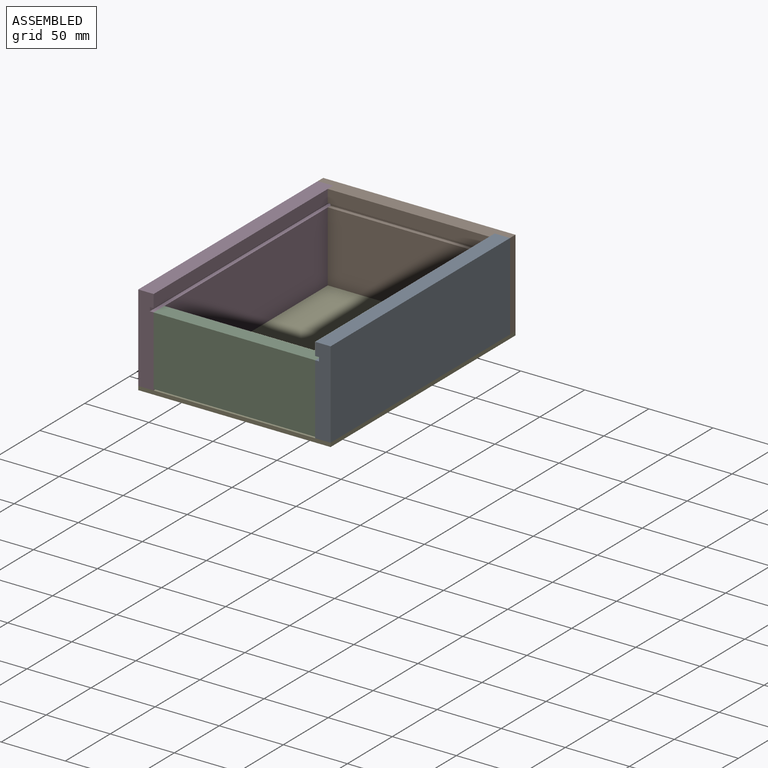
[diagram: assembled view]
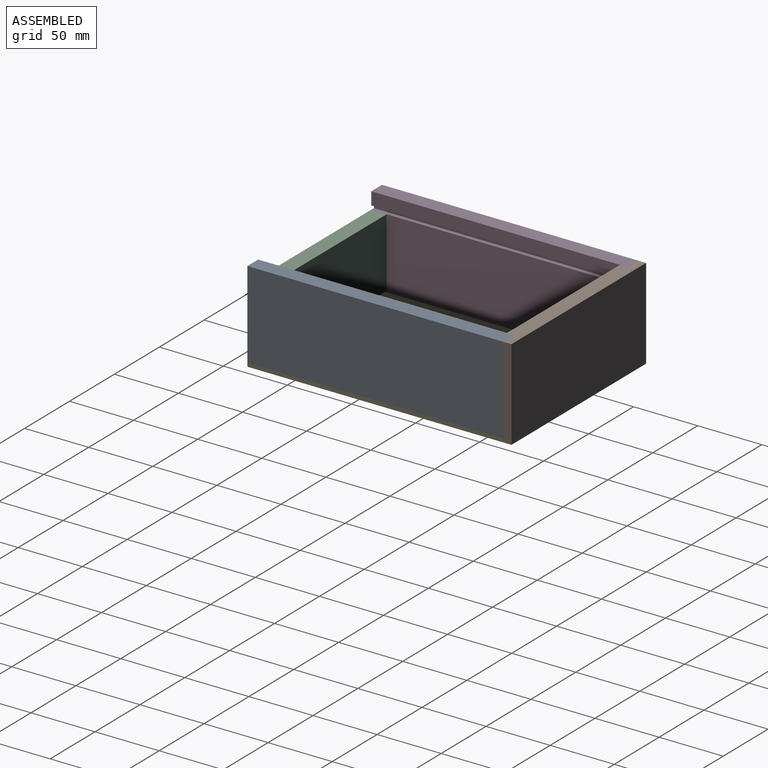
[diagram: assembled view, second angle]
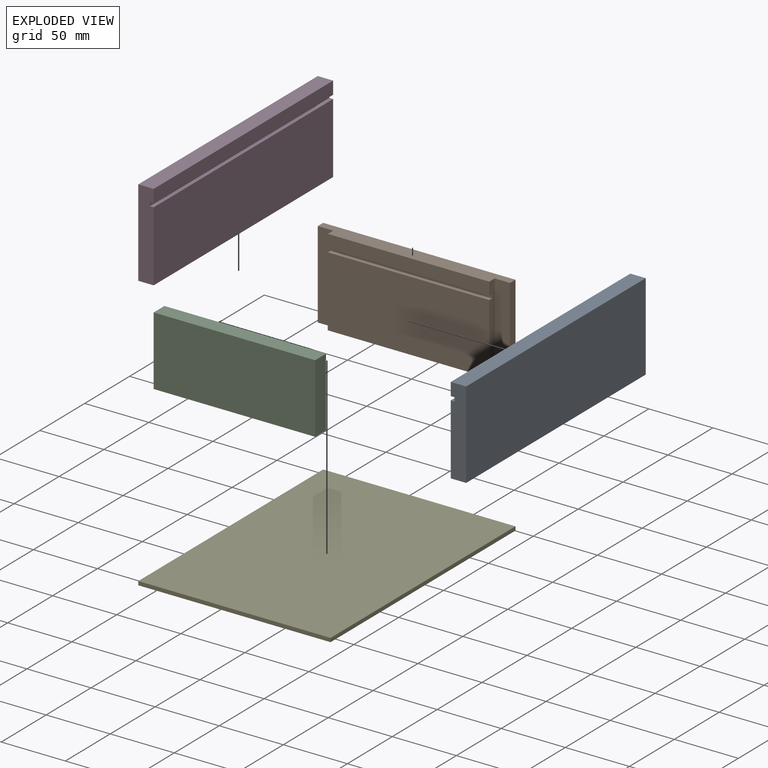
[diagram: exploded view]
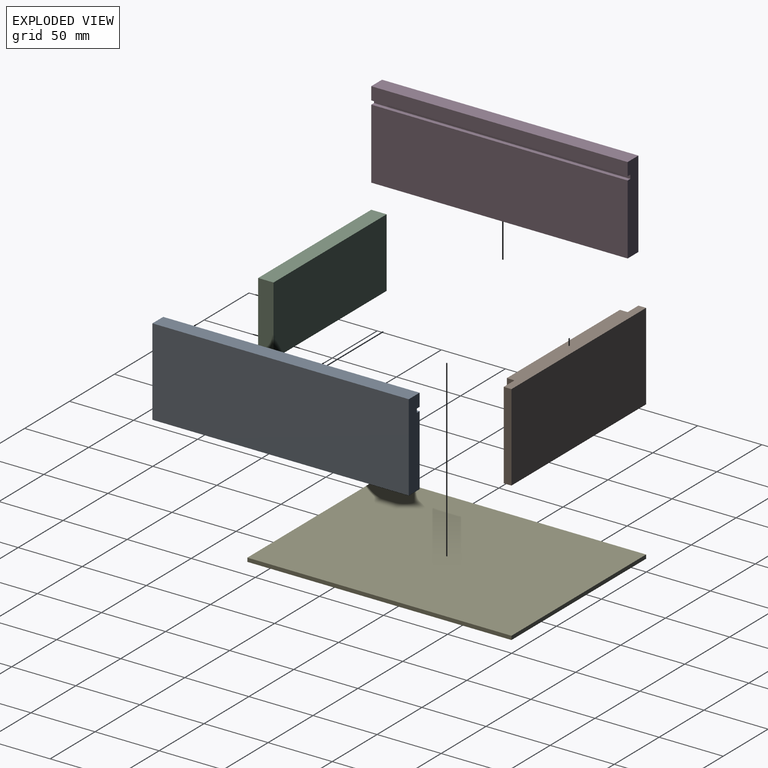
[diagram: exploded view, second angle]
ASSEMBLY  parts=5 mates=4
PART A: 10 faces, bbox 12x200x68 mm
  f0: plane 200x12mm, normal (0,0,1), area 2400mm2, adj f1,f7,f8,f9
  f1: plane 200x10mm, normal (-1,0,0), area 2000mm2, adj f0,f2,f8,f9
  f2: plane 200x3mm, normal (0,0,-1), area 600mm2, adj f1,f3,f8,f9
  f3: plane 200x3mm, normal (-1,0,0), area 600mm2, adj f2,f4,f8,f9
  f4: plane 200x3mm, normal (0,0,1), area 600mm2, adj f3,f5,f8,f9
  f5: plane 200x55mm, normal (-1,0,0), area 11000mm2, adj f4,f6,f8,f9
  f6: plane 200x12mm, normal (0,0,-1), area 2400mm2, adj f5,f7,f8,f9
  f7: plane 200x68mm, normal (1,0,0), area 13600mm2, adj f0,f6,f8,f9
  f8: plane 68x12mm, normal (0,-1,0), area 807mm2, adj f0,f1,f2,f3,f4,f5,f6,f7
  f9: plane 68x12mm, normal (0,1,0), area 807mm2, adj f0,f1,f2,f3,f4,f5,f6,f7
PART B: 14 faces, bbox 150x12x68 mm
  f0: plane 126x55mm, normal (0,-1,0), area 6930mm2, adj f3,f6,f11,f13
  f1: plane 150x12mm, normal (0,0,1), area 1656mm2, adj f2,f7,f8,f9,f10,f11,f12,f13
  f2: plane 126x10mm, normal (0,-1,0), area 1260mm2, adj f1,f4,f11,f13
  f3: plane 150x12mm, normal (0,0,-1), area 1656mm2, adj f0,f7,f8,f9,f10,f11,f12,f13
  f4: plane 126x3mm, normal (0,0,-1), area 378mm2, adj f2,f5,f11,f13
  f5: plane 126x3mm, normal (0,-1,0), area 378mm2, adj f4,f6,f11,f13
  f6: plane 126x3mm, normal (0,0,1), area 378mm2, adj f0,f5,f11,f13
  f7: plane 150x68mm, normal (0,1,0), area 10200mm2, adj f1,f3,f8,f9
  f8: plane 68x6mm, normal (1,0,0), area 408mm2, adj f1,f3,f7,f10
  f9: plane 68x6mm, normal (-1,0,0), area 408mm2, adj f1,f3,f7,f12
  f10: plane 68x12mm, normal (0,-1,0), area 816mm2, adj f1,f3,f8,f11
  f11: plane 68x6mm, normal (1,0,0), area 399mm2, adj f0,f1,f2,f3,f4,f5,f6,f10
  f12: plane 68x12mm, normal (0,-1,0), area 816mm2, adj f1,f3,f9,f13
  f13: plane 68x6mm, normal (-1,0,0), area 399mm2, adj f0,f1,f2,f3,f4,f5,f6,f12
PART C: 6 faces, bbox 126x12x54 mm
  f0: plane 126x54mm, normal (0,-1,0), area 6804mm2, adj f1,f3,f4,f5
  f1: plane 126x12mm, normal (0,0,-1), area 1512mm2, adj f0,f2,f4,f5
  f2: plane 126x54mm, normal (0,1,0), area 6804mm2, adj f1,f3,f4,f5
  f3: plane 126x12mm, normal (0,0,1), area 1512mm2, adj f0,f2,f4,f5
  f4: plane 54x12mm, normal (-1,0,0), area 648mm2, adj f0,f1,f2,f3
  f5: plane 54x12mm, normal (1,0,0), area 648mm2, adj f0,f1,f2,f3
PART D: 10 faces, bbox 12x200x68 mm
  f0: plane 200x10mm, normal (1,0,0), area 2000mm2, adj f1,f7,f8,f9
  f1: plane 200x12mm, normal (0,0,1), area 2400mm2, adj f0,f2,f8,f9
  f2: plane 200x68mm, normal (-1,0,0), area 13600mm2, adj f1,f3,f8,f9
  f3: plane 200x12mm, normal (0,0,-1), area 2400mm2, adj f2,f4,f8,f9
  f4: plane 200x55mm, normal (1,0,0), area 11000mm2, adj f3,f5,f8,f9
  f5: plane 200x3mm, normal (0,0,1), area 600mm2, adj f4,f6,f8,f9
  f6: plane 200x3mm, normal (1,0,0), area 600mm2, adj f5,f7,f8,f9
  f7: plane 200x3mm, normal (0,0,-1), area 600mm2, adj f0,f6,f8,f9
  f8: plane 68x12mm, normal (0,-1,0), area 807mm2, adj f0,f1,f2,f3,f4,f5,f6,f7
  f9: plane 68x12mm, normal (0,1,0), area 807mm2, adj f0,f1,f2,f3,f4,f5,f6,f7
PART E: 6 faces, bbox 150x206x3 mm
  f0: plane 150x3mm, normal (0,1,0), area 450mm2, adj f1,f3,f4,f5
  f1: plane 206x3mm, normal (-1,0,0), area 618mm2, adj f0,f2,f4,f5
  f2: plane 150x3mm, normal (0,-1,0), area 450mm2, adj f1,f3,f4,f5
  f3: plane 206x3mm, normal (1,0,0), area 618mm2, adj f0,f2,f4,f5
  f4: plane 206x150mm, normal (0,0,1), area 30900mm2, adj f0,f1,f2,f3
  f5: plane 206x150mm, normal (0,0,-1), area 30900mm2, adj f0,f1,f2,f3
PLACE A t=(128.73,37.34,-25.08)mm
PLACE B t=(-9.27,31.34,-25.08)mm
PLACE C t=(2.73,-162.66,-24.08)mm
PLACE D t=(2.73,37.34,-25.08)mm
PLACE E t=(61.74,-92,-28.08)mm
MATE fastened C.f0 <-> A.f8  axis (0,-1,0) through (128.73,-162.66,29.92)mm
MATE fastened A.f0 <-> B.f1  axis (0,0,1) through (128.73,37.34,42.92)mm
MATE fastened E.f4 <-> D.f3  axis (0,0,1) through (-9.27,-162.66,-25.08)mm
MATE fastened D.f1 <-> B.f1  axis (0,0,1) through (-9.27,37.34,42.92)mm
